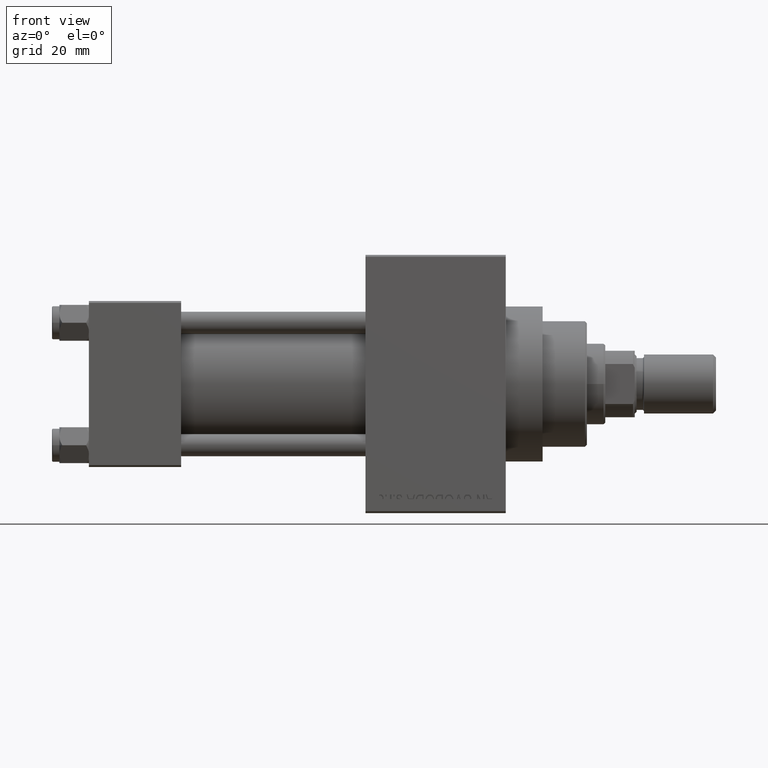
[diagram: clean part render]
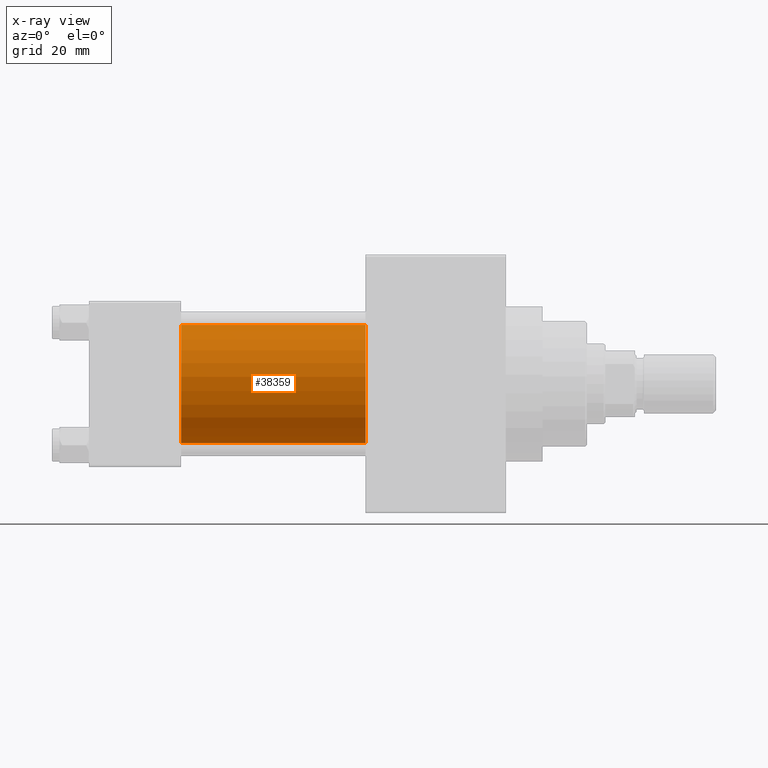
[diagram: x-ray — body ghosted, one internal face saturated and labeled with its STEP entity id]
A machine part, front view, then the same camera in x-ray: the body is ghosted and one INTERNAL B-rep face — a face not visible from any outside direction — is saturated and labeled: STEP entity #38359.
In plain terms, the highlighted cylindrical surface (partial cylindrical patch) has radius 16 mm, axis along (-1, -0, -0).
Its self-contained STEP definition (entity closure, byte-faithful):
#818 = FACE_OUTER_BOUND ( 'NONE', #7036, .T. ) ;
#2955 = VERTEX_POINT ( 'NONE', #9443 ) ;
#4996 = ORIENTED_EDGE ( 'NONE', *, *, #30216, .T. ) ;
#5367 = AXIS2_PLACEMENT_3D ( 'NONE', #21556, #36214, #32842 ) ;
#7036 = EDGE_LOOP ( 'NONE', ( #4996, #45460, #13322, #27624 ) ) ;
#9443 = CARTESIAN_POINT ( 'NONE',  ( 75.00000000000001421, -2.602085213965210642E-15, 16.00000000000000000 ) ) ;
#10319 = CARTESIAN_POINT ( 'NONE',  ( 75.00000000000001421, -6.426503353294456087E-16, -16.00000000000000000 ) ) ;
#10452 = LINE ( 'NONE', #40521, #27535 ) ;
#10926 = DIRECTION ( 'NONE',  ( -1.000000000000000000, -0.000000000000000000, -0.000000000000000000 ) ) ;
#13322 = ORIENTED_EDGE ( 'NONE', *, *, #17130, .F. ) ;
#13459 = LINE ( 'NONE', #39212, #39286 ) ;
#15509 = CYLINDRICAL_SURFACE ( 'NONE', #47395, 16.00000000000000000 ) ;
#17130 = EDGE_CURVE ( 'NONE', #36903, #30606, #41169, .T. ) ;
#20061 = CARTESIAN_POINT ( 'NONE',  ( 25.00000000000000000, -2.602085213965210642E-15, 0.000000000000000000 ) ) ;
#21556 = CARTESIAN_POINT ( 'NONE',  ( 75.00000000000001421, -2.602085213965210642E-15, 0.000000000000000000 ) ) ;
#22962 = DIRECTION ( 'NONE',  ( 0.000000000000000000, 0.000000000000000000, 1.000000000000000000 ) ) ;
#23120 = CARTESIAN_POINT ( 'NONE',  ( 25.00000000000000000, -2.602085213965210642E-15, 16.00000000000000000 ) ) ;
#25057 = AXIS2_PLACEMENT_3D ( 'NONE', #20061, #31585, #30628 ) ;
#27535 = VECTOR ( 'NONE', #10926, 1000.000000000000000 ) ;
#27624 = ORIENTED_EDGE ( 'NONE', *, *, #45499, .F. ) ;
#28129 = DIRECTION ( 'NONE',  ( -1.000000000000000000, -0.000000000000000000, -0.000000000000000000 ) ) ;
#30162 = CARTESIAN_POINT ( 'NONE',  ( 75.00000000000001421, -2.602085213965210642E-15, 0.000000000000000000 ) ) ;
#30216 = EDGE_CURVE ( 'NONE', #2955, #34269, #46876, .T. ) ;
#30606 = VERTEX_POINT ( 'NONE', #45293 ) ;
#30628 = DIRECTION ( 'NONE',  ( 0.000000000000000000, 0.000000000000000000, -1.000000000000000000 ) ) ;
#31585 = DIRECTION ( 'NONE',  ( 1.000000000000000000, 0.000000000000000000, 0.000000000000000000 ) ) ;
#32842 = DIRECTION ( 'NONE',  ( 0.000000000000000000, 0.000000000000000000, -1.000000000000000000 ) ) ;
#33323 = EDGE_CURVE ( 'NONE', #34269, #30606, #13459, .T. ) ;
#34269 = VERTEX_POINT ( 'NONE', #10319 ) ;
#36214 = DIRECTION ( 'NONE',  ( 1.000000000000000000, 0.000000000000000000, 0.000000000000000000 ) ) ;
#36903 = VERTEX_POINT ( 'NONE', #23120 ) ;
#38359 = ADVANCED_FACE ( 'NONE', ( #818 ), #15509, .F. ) ;
#39212 = CARTESIAN_POINT ( 'NONE',  ( 75.00000000000001421, -6.426503353294456087E-16, -16.00000000000000000 ) ) ;
#39286 = VECTOR ( 'NONE', #28129, 1000.000000000000000 ) ;
#40521 = CARTESIAN_POINT ( 'NONE',  ( 75.00000000000001421, -2.602085213965210642E-15, 16.00000000000000000 ) ) ;
#41169 = CIRCLE ( 'NONE', #25057, 16.00000000000000000 ) ;
#44860 = DIRECTION ( 'NONE',  ( -1.000000000000000000, -0.000000000000000000, -0.000000000000000000 ) ) ;
#45293 = CARTESIAN_POINT ( 'NONE',  ( 25.00000000000000000, -6.426503353294456087E-16, -16.00000000000000000 ) ) ;
#45460 = ORIENTED_EDGE ( 'NONE', *, *, #33323, .T. ) ;
#45499 = EDGE_CURVE ( 'NONE', #2955, #36903, #10452, .T. ) ;
#46876 = CIRCLE ( 'NONE', #5367, 16.00000000000000000 ) ;
#47395 = AXIS2_PLACEMENT_3D ( 'NONE', #30162, #44860, #22962 ) ;